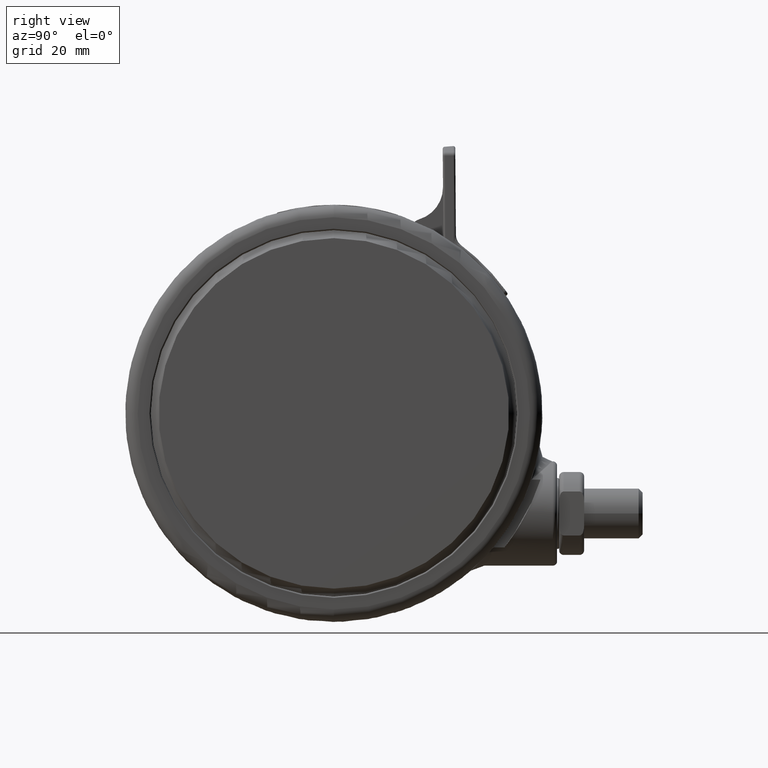
[diagram: clean part render]
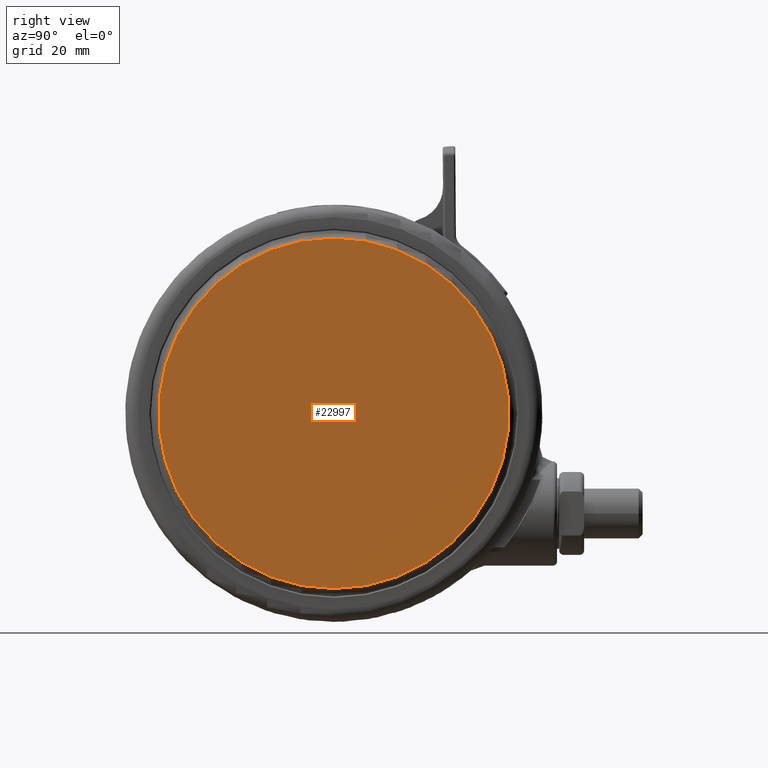
[diagram: same view with one face highlighted and labeled with its STEP entity id]
A machine part, right view. The second image highlights one B-rep face of the part: STEP entity #22997.
In plain terms, the highlighted planar face has unit normal (-1, -0, 0).
Its self-contained STEP definition (entity closure, byte-faithful):
#1389 = VERTEX_POINT ( 'NONE', #6882 ) ;
#2193 = AXIS2_PLACEMENT_3D ( 'NONE', #45087, #15047, #41454 ) ;
#5267 = CARTESIAN_POINT ( 'NONE',  ( 0.0000000000000000000, 0.0000000000000000000, 0.0000000000000000000 ) ) ;
#6882 = CARTESIAN_POINT ( 'NONE',  ( 42.00000000000000000, 0.0000000000000000000, 0.0000000000000000000 ) ) ;
#9072 = DIRECTION ( 'NONE',  ( 1.000000000000000000, 0.0000000000000000000, 0.0000000000000000000 ) ) ;
#12159 = DIRECTION ( 'NONE',  ( 0.0000000000000000000, 0.0000000000000000000, 1.000000000000000000 ) ) ;
#13399 = AXIS2_PLACEMENT_3D ( 'NONE', #34782, #12159, #38564 ) ;
#15047 = DIRECTION ( 'NONE',  ( 0.0000000000000000000, 0.0000000000000000000, -1.000000000000000000 ) ) ;
#18329 = EDGE_CURVE ( 'NONE', #1389, #30973, #30205, .T. ) ;
#20377 = ORIENTED_EDGE ( 'NONE', *, *, #18329, .T. ) ;
#20686 = ORIENTED_EDGE ( 'NONE', *, *, #34798, .T. ) ;
#22056 = CARTESIAN_POINT ( 'NONE',  ( -42.00000000000000000, 5.143516556418883300E-015, 0.0000000000000000000 ) ) ;
#22997 = ADVANCED_FACE ( 'NONE', ( #36614 ), #37662, .F. ) ;
#30205 = CIRCLE ( 'NONE', #40873, 42.00000000000000000 ) ;
#30973 = VERTEX_POINT ( 'NONE', #22056 ) ;
#31701 = DIRECTION ( 'NONE',  ( 0.0000000000000000000, 0.0000000000000000000, 1.000000000000000000 ) ) ;
#34782 = CARTESIAN_POINT ( 'NONE',  ( 0.0000000000000000000, 0.0000000000000000000, 0.0000000000000000000 ) ) ;
#34798 = EDGE_CURVE ( 'NONE', #30973, #1389, #44677, .T. ) ;
#36614 = FACE_OUTER_BOUND ( 'NONE', #41730, .T. ) ;
#37662 = PLANE ( 'NONE',  #2193 ) ;
#38564 = DIRECTION ( 'NONE',  ( 1.000000000000000000, 0.0000000000000000000, 0.0000000000000000000 ) ) ;
#40873 = AXIS2_PLACEMENT_3D ( 'NONE', #5267, #31701, #9072 ) ;
#41454 = DIRECTION ( 'NONE',  ( -1.000000000000000000, 0.0000000000000000000, 0.0000000000000000000 ) ) ;
#41730 = EDGE_LOOP ( 'NONE', ( #20377, #20686 ) ) ;
#44677 = CIRCLE ( 'NONE', #13399, 42.00000000000000000 ) ;
#45087 = CARTESIAN_POINT ( 'NONE',  ( 0.0000000000000000000, 0.0000000000000000000, 0.0000000000000000000 ) ) ;